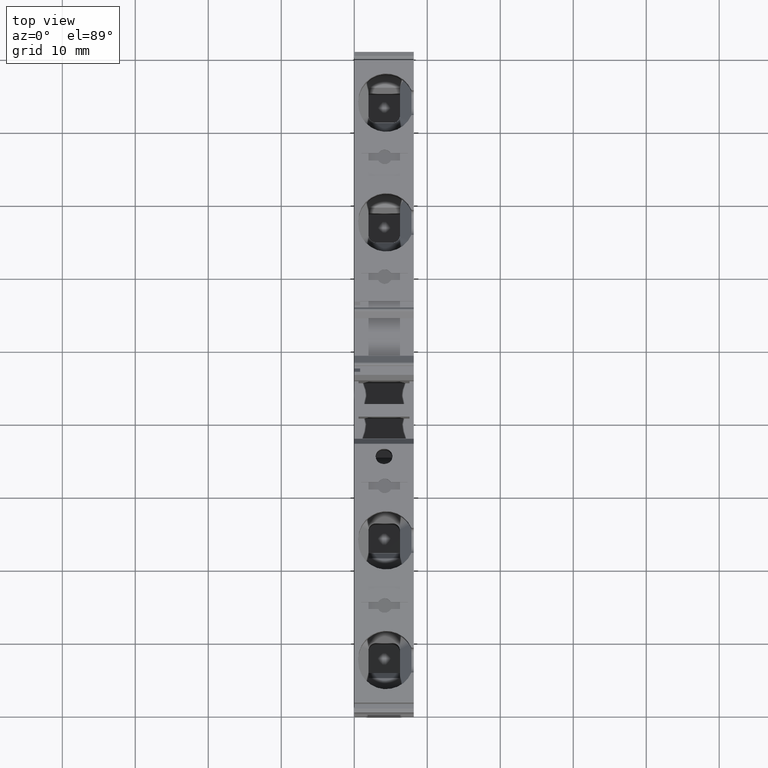
[diagram: clean part render]
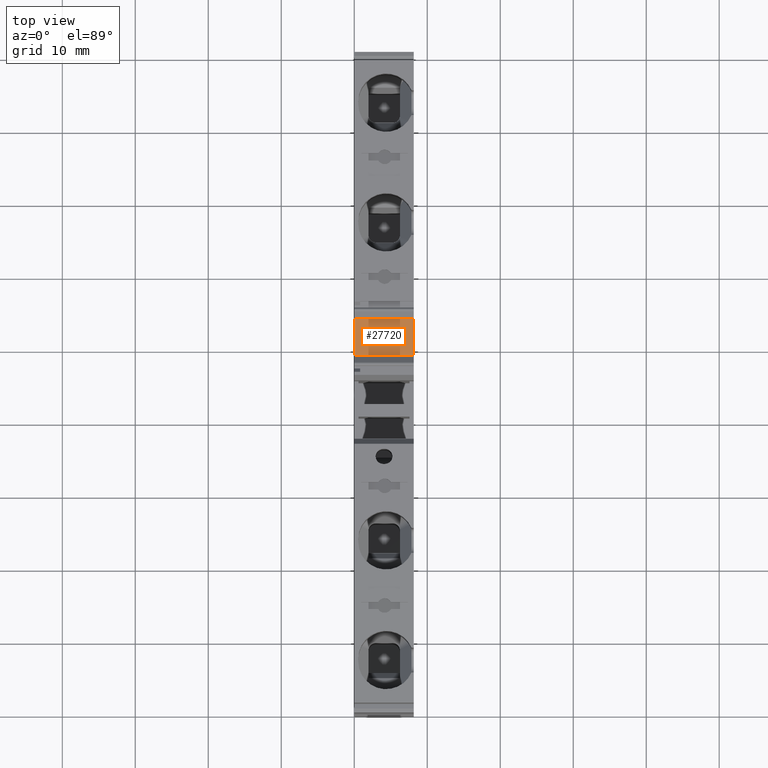
[diagram: same view with one face highlighted and labeled with its STEP entity id]
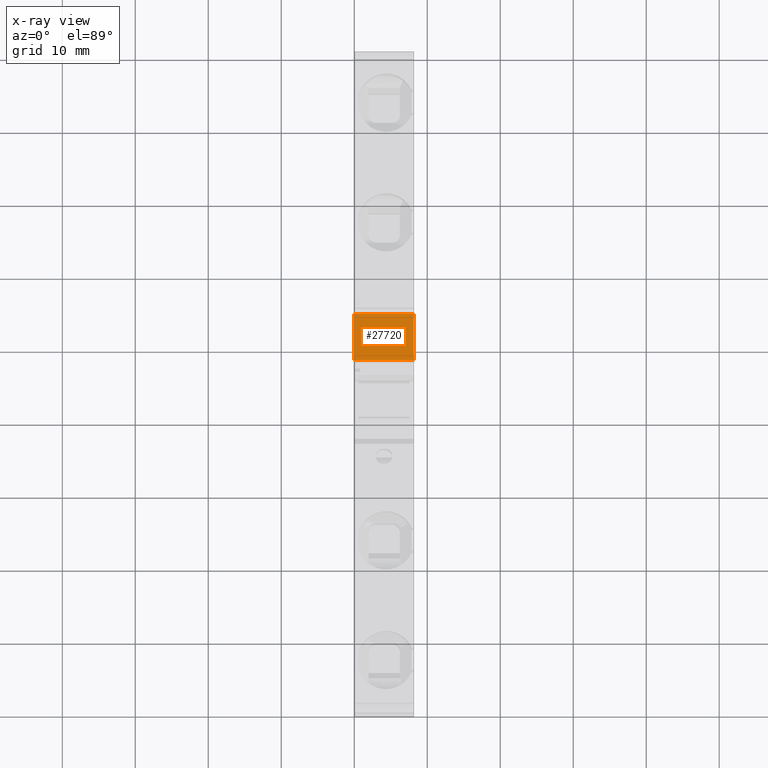
[diagram: x-ray of the same camera — body ghosted, the highlighted face saturated]
A machine part, top view. The second image highlights one B-rep face of the part: STEP entity #27720.
The next image is the same camera in x-ray: the body ghosted, the highlighted face saturated — about 0% of this face is hidden behind the body in this view.
In plain terms, the highlighted planar face has unit normal (0, -0, -1).
Its self-contained STEP definition (entity closure, byte-faithful):
#6760=CARTESIAN_POINT('',(3.70716722091318,-5.39999999587489,
53.6699999996811));
#6770=VERTEX_POINT('',#6760);
#6800=CARTESIAN_POINT('',(1.85959602495824E-11,-5.39999999543848,
53.6699999996912));
#6810=DIRECTION('',(1.,-1.17722068204708E-10,-2.71468618521186E-12));
#6820=VECTOR('',#6810,1.);
#6830=LINE('',#6800,#6820);
#6840=CARTESIAN_POINT('',(10.0571672209133,-5.39999999662242,
53.6699999996639));
#6850=VERTEX_POINT('',#6840);
#6860=EDGE_CURVE('',#6770,#6850,#6830,.T.);
#8210=CARTESIAN_POINT('',(10.0571672208912,-5.3999999966266,
45.5199999998096));
#8220=VERTEX_POINT('',#8210);
#8250=CARTESIAN_POINT('',(5.95238181443153E-15,-5.39999999544265,
45.5199999998341));
#8260=DIRECTION('',(1.,-1.17722068204707E-10,-2.43228784428133E-12));
#8270=VECTOR('',#8260,1.);
#8280=LINE('',#8250,#8270);
#8290=CARTESIAN_POINT('',(3.70716722089105,-5.39999999587907,
45.519999999825));
#8300=VERTEX_POINT('',#8290);
#8310=EDGE_CURVE('',#8300,#8220,#8280,.T.);
#27380=CARTESIAN_POINT('',(10.0571672207676,-5.39999999664991,
-1.18867409684136E-9));
#27390=DIRECTION('',(-2.71468618527214E-12,-5.12067753800213E-13,-1.));
#27400=VECTOR('',#27390,1.);
#27410=LINE('',#27380,#27400);
#27420=EDGE_CURVE('',#6850,#8220,#27410,.T.);
#27560=CARTESIAN_POINT('',(3.70716722091318,-5.39999999587489,
53.6699999996811));
#27570=DIRECTION('',(-1.17722068204706E-10,-1.,5.12067754119791E-13));
#27580=DIRECTION('',(-1.,1.17722068204708E-10,2.71468618521186E-12));
#27590=AXIS2_PLACEMENT_3D('',#27560,#27570,#27580);
#27600=PLANE('',#27590);
#27610=ORIENTED_EDGE('',*,*,#6860,.T.);
#27620=CARTESIAN_POINT('',(3.70716722076748,-5.39999999590238,
-1.17419677774532E-9));
#27630=DIRECTION('',(-2.71468618527214E-12,-5.12067753800213E-13,-1.));
#27640=VECTOR('',#27630,1.);
#27650=LINE('',#27620,#27640);
#27660=EDGE_CURVE('',#6770,#8300,#27650,.T.);
#27670=ORIENTED_EDGE('',*,*,#27660,.F.);
#27680=ORIENTED_EDGE('',*,*,#8310,.F.);
#27690=ORIENTED_EDGE('',*,*,#27420,.T.);
#27700=EDGE_LOOP('',(#27690,#27680,#27670,#27610));
#27710=FACE_OUTER_BOUND('',#27700,.T.);
#27720=ADVANCED_FACE('',(#27710),#27600,.F.);